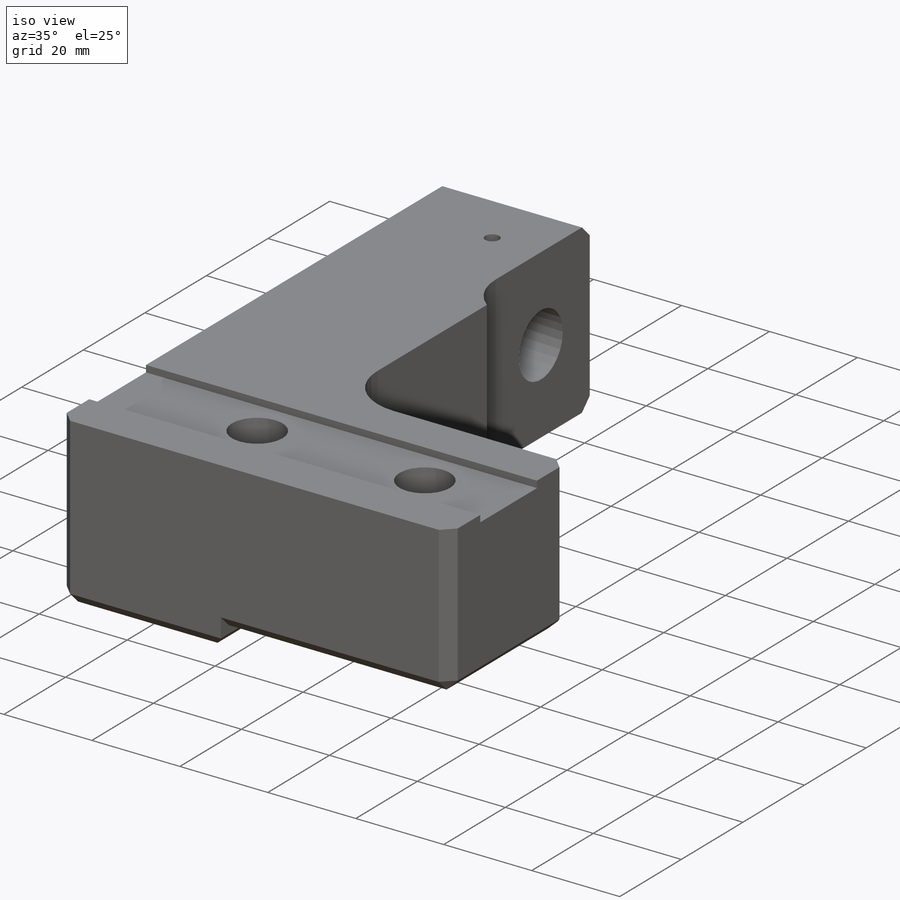
[diagram: iso view]
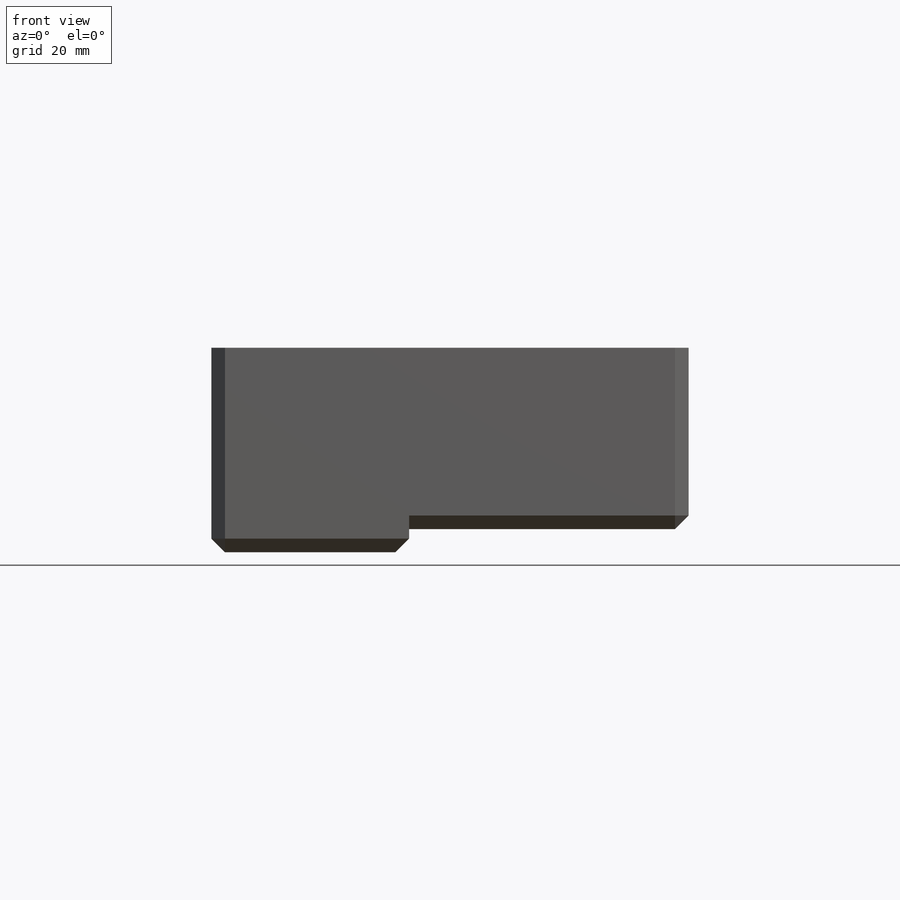
[diagram: front view]
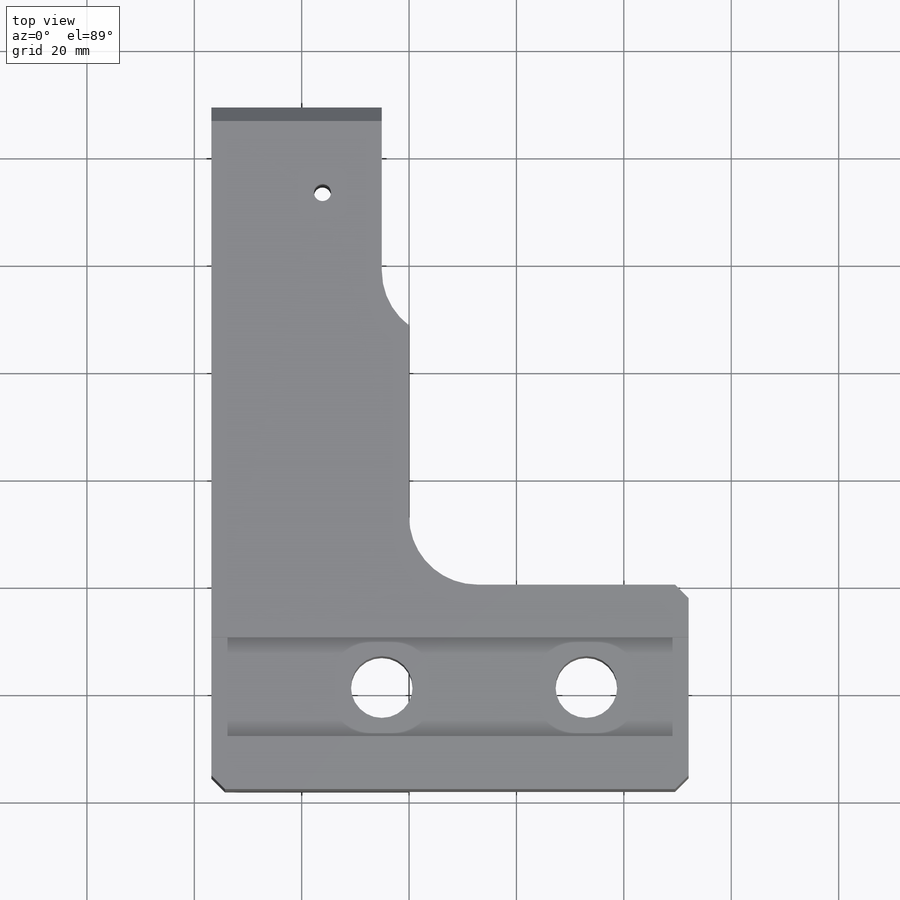
[diagram: top view]
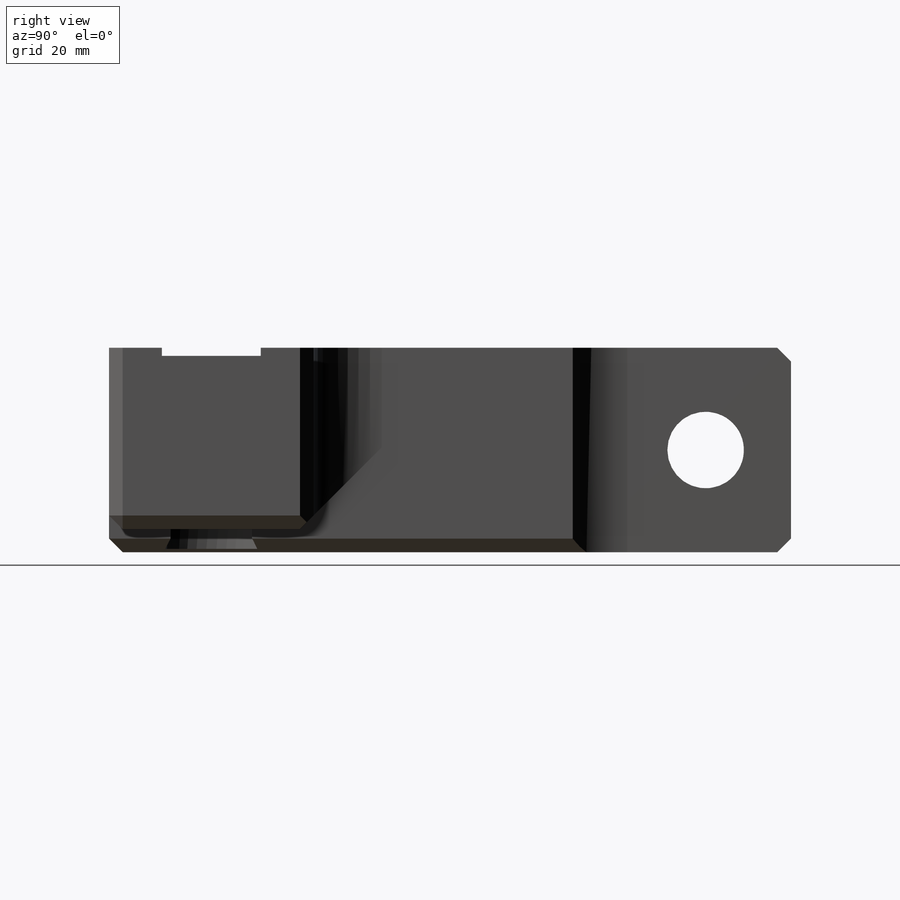
[diagram: right view]
SOLIDWORKS PART (.sldprt)
format: sldprt  version: not decoded by parser v0  size: 481,792 bytes
history: native  units: mm
features: sketch x10, hole x3, cut_extrude x3, chamfer x3, material x1, extrude x1, fillet x1 (+14 scaffold rows collapsed)
feature tree (36):
  scaffold x14  (default folders/planes/origin — collapsed)
  material  "6061-T6 Al"
  sketch  "Sketch1"  dims[D1=36.83mm D2=88.9mm D3=38.1mm D4=88.9mm]
  extrude  "Extrude1"  Depth=38.1mm
  hole  "9/16 (0.5625) Diameter Hole1"  Diameter=14.2875mm Depth=88.9mm
  sketch  "Sketch3"  dims[D1=19.05mm D2=15.875mm]
  sketch  "Sketch2"  dims[hole-wizard template sketch: 46 standard entries collapsed; hole parameters kept: c15.Thru Hole Dia.=14.2875mm c15.Thru Hole Depth=88.9mm c15.Near C'Sink Dia.=15.5575mm c15.D4=~3.666174mm c15.Near C'Sink Angle=90.0deg c15.Far C'Sink Dia.=15.5575mm c15.D6=~9.919017mm c15.Far C'Sink Angle=90.0deg]
  hole  "CBORE for 7/16 Socket Head Cap Screw2"  Diameter=11.50874mm Depth=38.1mm
  sketch  "Sketch14"  dims[D1=19.05mm D2=38.1mm D3=5.08mm]
  sketch  "Sketch13"  dims[hole-wizard template sketch: 41 standard entries collapsed; hole parameters kept: c12.Thru Hole Dia.=~11.50874mm c12.Thru Hole Depth=38.1mm c12.C'Bore Dia.=~18.25752mm c12.C'Bore Depth=14.7955mm c12.Near C'Sink Dia.=~19.52752mm c12.D6=~4.399409mm c12.Near C'Sink Angle=90.0deg c12.Mid C'Sink Dia.=11.938mm c12.D8=~5.388154mm c12.Mid C'Sink Angle=90.0deg]
  hole  "1/8 (0.125) Diameter Hole1"  Diameter=3.175mm Depth=38.1mm
  sketch  "Sketch10"  dims[D1=16.129mm]
  sketch  "Sketch9"  dims[hole-wizard template sketch: 60 standard entries collapsed; hole parameters kept: c18.Thru Hole Depth=38.1mm]
  sketch  "Sketch12"  dims[c1.D1=38.1mm c1.D2=~41.713928mm c2.D1=40.64mm]
  cut_extrude  "Extrude2"  Depth=5.08mm
  sketch  "Sketch15"  dims[c1.D1=~4.702654mm c1.D2=52.07mm c2.D1=4.318mm]
  cut_extrude  "Extrude3"  [1 undecoded]
  sketch  "Sketch16"  dims[c1.D2=~11.50874mm c1.D1=~23.082105mm c2.D2=88.9mm c2.D1=18.415mm c3.D2=9.2075mm]
  cut_extrude  "Extrude4"  Depth=1.524mm
  fillet  "Fillet1"  Radius=12.7mm
  chamfer  "Chamfer2"  Distance=2.54mm Angle=45deg
  chamfer  "Chamfer3"  Distance=2.54mm Angle=45deg
  chamfer  "Chamfer4"  Distance=0.762mm Angle=45deg
decode coverage: 20 of 21 modeling features carry decoded parameters
note: ~ marks probable driven/reference dimensions
note: 1 parameter value undecoded
note: suppression state not decoded; provenance and decode notes live in map.json
